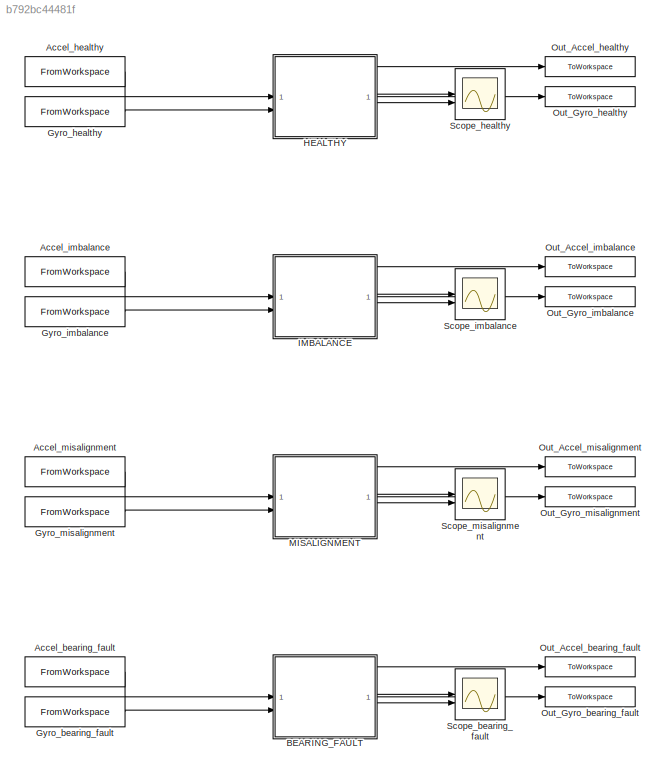
MODEL slx_b792bc44481f
KIND model
CONFIG AbsTol = auto
CONFIG EnableMultiTasking = off
CONFIG FixedStep = 0.01
CONFIG MaxStep = auto
CONFIG MinStep = auto
CONFIG RelTol = 1e-3
CONFIG SampleTimeConstraint = Unconstrained
CONFIG SolverName = ode4
CONFIG StartTime = 0.0
CONFIG StopTime = 30
BLOCK [FromWorkspace] Accel_bearing_fault
  VariableName = Acceleration_bearing_fault
BLOCK [FromWorkspace] Accel_healthy
  VariableName = Acceleration_healthy
BLOCK [FromWorkspace] Accel_imbalance
  VariableName = Acceleration_imbalance
BLOCK [FromWorkspace] Accel_misalignment
  VariableName = Acceleration_misalignment
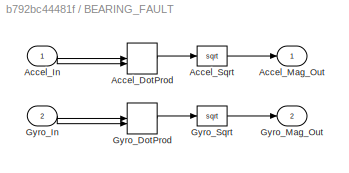
BLOCK [SubSystem] BEARING_FAULT
BLOCK [DotProduct] BEARING_FAULT/Accel_DotProd
  OutDataTypeStr = Inherit: Inherit via internal rule
BLOCK [Inport] BEARING_FAULT/Accel_In
BLOCK [Outport] BEARING_FAULT/Accel_Mag_Out
BLOCK [Sqrt] BEARING_FAULT/Accel_Sqrt
BLOCK [DotProduct] BEARING_FAULT/Gyro_DotProd
  OutDataTypeStr = Inherit: Inherit via internal rule
BLOCK [Inport] BEARING_FAULT/Gyro_In
  Port = 2
BLOCK [Outport] BEARING_FAULT/Gyro_Mag_Out
  Port = 2
BLOCK [Sqrt] BEARING_FAULT/Gyro_Sqrt
BLOCK [FromWorkspace] Gyro_bearing_fault
  VariableName = AngularVelocity_bearing_fault
BLOCK [FromWorkspace] Gyro_healthy
  VariableName = AngularVelocity_healthy
BLOCK [FromWorkspace] Gyro_imbalance
  VariableName = AngularVelocity_imbalance
BLOCK [FromWorkspace] Gyro_misalignment
  VariableName = AngularVelocity_misalignment
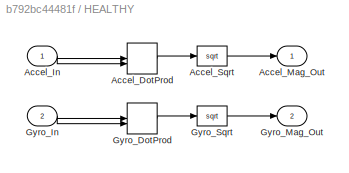
BLOCK [SubSystem] HEALTHY
BLOCK [DotProduct] HEALTHY/Accel_DotProd
  OutDataTypeStr = Inherit: Inherit via internal rule
BLOCK [Inport] HEALTHY/Accel_In
BLOCK [Outport] HEALTHY/Accel_Mag_Out
BLOCK [Sqrt] HEALTHY/Accel_Sqrt
BLOCK [DotProduct] HEALTHY/Gyro_DotProd
  OutDataTypeStr = Inherit: Inherit via internal rule
BLOCK [Inport] HEALTHY/Gyro_In
  Port = 2
BLOCK [Outport] HEALTHY/Gyro_Mag_Out
  Port = 2
BLOCK [Sqrt] HEALTHY/Gyro_Sqrt
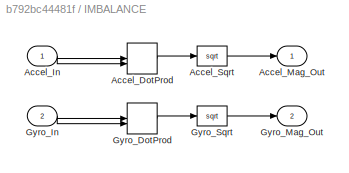
BLOCK [SubSystem] IMBALANCE
BLOCK [DotProduct] IMBALANCE/Accel_DotProd
  OutDataTypeStr = Inherit: Inherit via internal rule
BLOCK [Inport] IMBALANCE/Accel_In
BLOCK [Outport] IMBALANCE/Accel_Mag_Out
BLOCK [Sqrt] IMBALANCE/Accel_Sqrt
BLOCK [DotProduct] IMBALANCE/Gyro_DotProd
  OutDataTypeStr = Inherit: Inherit via internal rule
BLOCK [Inport] IMBALANCE/Gyro_In
  Port = 2
BLOCK [Outport] IMBALANCE/Gyro_Mag_Out
  Port = 2
BLOCK [Sqrt] IMBALANCE/Gyro_Sqrt
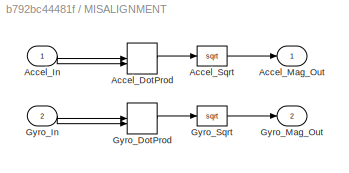
BLOCK [SubSystem] MISALIGNMENT
BLOCK [DotProduct] MISALIGNMENT/Accel_DotProd
  OutDataTypeStr = Inherit: Inherit via internal rule
BLOCK [Inport] MISALIGNMENT/Accel_In
BLOCK [Outport] MISALIGNMENT/Accel_Mag_Out
BLOCK [Sqrt] MISALIGNMENT/Accel_Sqrt
BLOCK [DotProduct] MISALIGNMENT/Gyro_DotProd
  OutDataTypeStr = Inherit: Inherit via internal rule
BLOCK [Inport] MISALIGNMENT/Gyro_In
  Port = 2
BLOCK [Outport] MISALIGNMENT/Gyro_Mag_Out
  Port = 2
BLOCK [Sqrt] MISALIGNMENT/Gyro_Sqrt
BLOCK [ToWorkspace] Out_Accel_bearing_fault
  FixptAsFi = on
  MaxDataPoints = inf
  SampleTime = -1
  VariableName = accel_mag_bearing_fault
BLOCK [ToWorkspace] Out_Accel_healthy
  FixptAsFi = on
  MaxDataPoints = inf
  SampleTime = -1
  VariableName = accel_mag_healthy
BLOCK [ToWorkspace] Out_Accel_imbalance
  FixptAsFi = on
  MaxDataPoints = inf
  SampleTime = -1
  VariableName = accel_mag_imbalance
BLOCK [ToWorkspace] Out_Accel_misalignment
  FixptAsFi = on
  MaxDataPoints = inf
  SampleTime = -1
  VariableName = accel_mag_misalignment
BLOCK [ToWorkspace] Out_Gyro_bearing_fault
  FixptAsFi = on
  MaxDataPoints = inf
  SampleTime = -1
  VariableName = gyro_mag_bearing_fault
BLOCK [ToWorkspace] Out_Gyro_healthy
  FixptAsFi = on
  MaxDataPoints = inf
  SampleTime = -1
  VariableName = gyro_mag_healthy
BLOCK [ToWorkspace] Out_Gyro_imbalance
  FixptAsFi = on
  MaxDataPoints = inf
  SampleTime = -1
  VariableName = gyro_mag_imbalance
BLOCK [ToWorkspace] Out_Gyro_misalignment
  FixptAsFi = on
  MaxDataPoints = inf
  SampleTime = -1
  VariableName = gyro_mag_misalignment
BLOCK [Scope] Scope_bearing_fault
  Floating = off
  GraphicalSettings = {"GraphicalSettings":{"LegacySettings":true,"Style":{"Style":{"PlotType":"Auto"}}}}
  NumInputPorts = 2
  WasSavedAsWebScope = on
BLOCK [Scope] Scope_healthy
  Floating = off
  GraphicalSettings = {"GraphicalSettings":{"LegacySettings":true,"Style":{"Style":{"PlotType":"Auto"}}}}
  NumInputPorts = 2
  WasSavedAsWebScope = on
BLOCK [Scope] Scope_imbalance
  Floating = off
  GraphicalSettings = {"GraphicalSettings":{"LegacySettings":true,"Style":{"Style":{"PlotType":"Auto"}}}}
  NumInputPorts = 2
  WasSavedAsWebScope = on
BLOCK [Scope] Scope_misalignment
  Floating = off
  GraphicalSettings = {"GraphicalSettings":{"LegacySettings":true,"Style":{"Style":{"PlotType":"Auto"}}}}
  NumInputPorts = 2
  WasSavedAsWebScope = on
LINE Accel_bearing_fault:1 -> BEARING_FAULT:1
LINE Accel_healthy:1 -> HEALTHY:1
LINE Accel_imbalance:1 -> IMBALANCE:1
LINE Accel_misalignment:1 -> MISALIGNMENT:1
LINE BEARING_FAULT/Accel_DotProd:1 -> BEARING_FAULT/Accel_Sqrt:1
NET BEARING_FAULT/Accel_In:1 -> BEARING_FAULT/Accel_DotProd:1, BEARING_FAULT/Accel_DotProd:2
LINE BEARING_FAULT/Accel_Sqrt:1 -> BEARING_FAULT/Accel_Mag_Out:1
LINE BEARING_FAULT/Gyro_DotProd:1 -> BEARING_FAULT/Gyro_Sqrt:1
NET BEARING_FAULT/Gyro_In:1 -> BEARING_FAULT/Gyro_DotProd:1, BEARING_FAULT/Gyro_DotProd:2
LINE BEARING_FAULT/Gyro_Sqrt:1 -> BEARING_FAULT/Gyro_Mag_Out:1
NET BEARING_FAULT:1 -> Out_Accel_bearing_fault:1, Scope_bearing_fault:1
NET BEARING_FAULT:2 -> Out_Gyro_bearing_fault:1, Scope_bearing_fault:2
LINE Gyro_bearing_fault:1 -> BEARING_FAULT:2
LINE Gyro_healthy:1 -> HEALTHY:2
LINE Gyro_imbalance:1 -> IMBALANCE:2
LINE Gyro_misalignment:1 -> MISALIGNMENT:2
LINE HEALTHY/Accel_DotProd:1 -> HEALTHY/Accel_Sqrt:1
NET HEALTHY/Accel_In:1 -> HEALTHY/Accel_DotProd:1, HEALTHY/Accel_DotProd:2
LINE HEALTHY/Accel_Sqrt:1 -> HEALTHY/Accel_Mag_Out:1
LINE HEALTHY/Gyro_DotProd:1 -> HEALTHY/Gyro_Sqrt:1
NET HEALTHY/Gyro_In:1 -> HEALTHY/Gyro_DotProd:1, HEALTHY/Gyro_DotProd:2
LINE HEALTHY/Gyro_Sqrt:1 -> HEALTHY/Gyro_Mag_Out:1
NET HEALTHY:1 -> Out_Accel_healthy:1, Scope_healthy:1
NET HEALTHY:2 -> Out_Gyro_healthy:1, Scope_healthy:2
LINE IMBALANCE/Accel_DotProd:1 -> IMBALANCE/Accel_Sqrt:1
NET IMBALANCE/Accel_In:1 -> IMBALANCE/Accel_DotProd:1, IMBALANCE/Accel_DotProd:2
LINE IMBALANCE/Accel_Sqrt:1 -> IMBALANCE/Accel_Mag_Out:1
LINE IMBALANCE/Gyro_DotProd:1 -> IMBALANCE/Gyro_Sqrt:1
NET IMBALANCE/Gyro_In:1 -> IMBALANCE/Gyro_DotProd:1, IMBALANCE/Gyro_DotProd:2
LINE IMBALANCE/Gyro_Sqrt:1 -> IMBALANCE/Gyro_Mag_Out:1
NET IMBALANCE:1 -> Out_Accel_imbalance:1, Scope_imbalance:1
NET IMBALANCE:2 -> Out_Gyro_imbalance:1, Scope_imbalance:2
LINE MISALIGNMENT/Accel_DotProd:1 -> MISALIGNMENT/Accel_Sqrt:1
NET MISALIGNMENT/Accel_In:1 -> MISALIGNMENT/Accel_DotProd:1, MISALIGNMENT/Accel_DotProd:2
LINE MISALIGNMENT/Accel_Sqrt:1 -> MISALIGNMENT/Accel_Mag_Out:1
LINE MISALIGNMENT/Gyro_DotProd:1 -> MISALIGNMENT/Gyro_Sqrt:1
NET MISALIGNMENT/Gyro_In:1 -> MISALIGNMENT/Gyro_DotProd:1, MISALIGNMENT/Gyro_DotProd:2
LINE MISALIGNMENT/Gyro_Sqrt:1 -> MISALIGNMENT/Gyro_Mag_Out:1
NET MISALIGNMENT:1 -> Out_Accel_misalignment:1, Scope_misalignment:1
NET MISALIGNMENT:2 -> Out_Gyro_misalignment:1, Scope_misalignment:2
note: NET lines group one-source signal fan-out (src -> all destinations, sorted); 1:1 wires keep LINE
